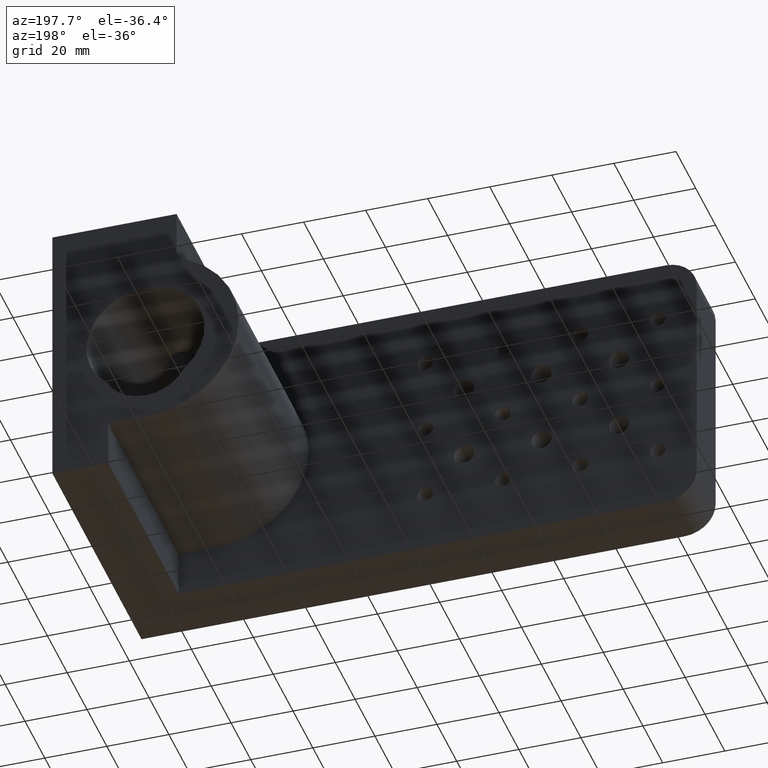
[diagram: clean part render]
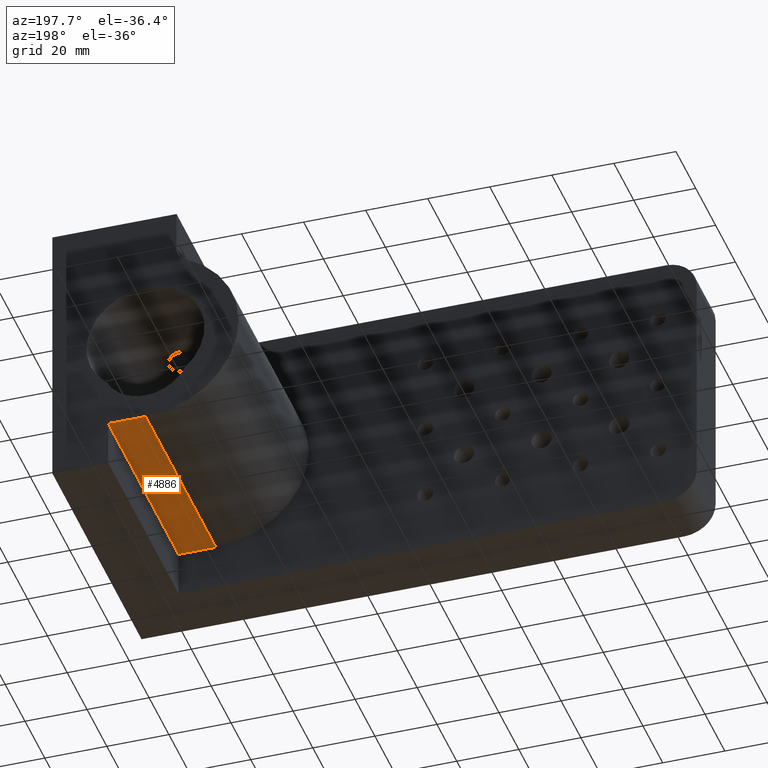
[diagram: same view with one face highlighted and labeled with its STEP entity id]
A machine part, auxiliary view. The second image highlights one B-rep face of the part: STEP entity #4886.
In plain terms, the highlighted planar face has unit normal (0, 0, 1).
Its self-contained STEP definition (entity closure, byte-faithful):
#108 = ORIENTED_EDGE ( 'NONE', *, *, #3926, .T. ) ;
#162 = CARTESIAN_POINT ( 'NONE',  ( 144.3969387244481500, 104.2146020396520600, 113.8158939252802600 ) ) ;
#237 = CARTESIAN_POINT ( 'NONE',  ( 156.3969387244482300, 175.2146020396520500, 113.8158939252802600 ) ) ;
#452 = LINE ( 'NONE', #237, #2522 ) ;
#521 = ORIENTED_EDGE ( 'NONE', *, *, #2670, .F. ) ;
#732 = DIRECTION ( 'NONE',  ( 1.000000000000000000, 0.0000000000000000000, -0.0000000000000000000 ) ) ;
#774 = CARTESIAN_POINT ( 'NONE',  ( 144.3969387244481500, 175.2146020396520500, 113.8158939252802600 ) ) ;
#834 = VERTEX_POINT ( 'NONE', #1533 ) ;
#932 = CARTESIAN_POINT ( 'NONE',  ( 156.3969387244482300, 175.2146020396520500, 113.8158939252802600 ) ) ;
#1070 = DIRECTION ( 'NONE',  ( -0.0000000000000000000, -1.000000000000000000, -0.0000000000000000000 ) ) ;
#1080 = CARTESIAN_POINT ( 'NONE',  ( 144.3969387244481500, 175.2146020396520500, 113.8158939252802600 ) ) ;
#1121 = VERTEX_POINT ( 'NONE', #162 ) ;
#1238 = EDGE_CURVE ( 'NONE', #834, #1121, #4701, .T. ) ;
#1400 = EDGE_LOOP ( 'NONE', ( #4998, #521, #3729, #108 ) ) ;
#1441 = VECTOR ( 'NONE', #1070, 1000.000000000000000 ) ;
#1530 = DIRECTION ( 'NONE',  ( -1.000000000000000000, -0.0000000000000000000, -0.0000000000000000000 ) ) ;
#1533 = CARTESIAN_POINT ( 'NONE',  ( 156.3969387244482300, 104.2146020396520600, 113.8158939252802600 ) ) ;
#1661 = FACE_OUTER_BOUND ( 'NONE', #1400, .T. ) ;
#1690 = DIRECTION ( 'NONE',  ( -1.000000000000000000, -0.0000000000000000000, -0.0000000000000000000 ) ) ;
#2472 = EDGE_CURVE ( 'NONE', #4934, #4715, #3198, .T. ) ;
#2522 = VECTOR ( 'NONE', #4078, 1000.000000000000000 ) ;
#2670 = EDGE_CURVE ( 'NONE', #4715, #1121, #4491, .T. ) ;
#2745 = AXIS2_PLACEMENT_3D ( 'NONE', #774, #3674, #732 ) ;
#2904 = CARTESIAN_POINT ( 'NONE',  ( 144.3969387244481500, 175.2146020396520500, 113.8158939252802600 ) ) ;
#3130 = VECTOR ( 'NONE', #1690, 1000.000000000000000 ) ;
#3198 = LINE ( 'NONE', #2904, #3130 ) ;
#3261 = PLANE ( 'NONE',  #2745 ) ;
#3298 = VECTOR ( 'NONE', #1530, 1000.000000000000000 ) ;
#3674 = DIRECTION ( 'NONE',  ( 0.0000000000000000000, 0.0000000000000000000, 1.000000000000000000 ) ) ;
#3729 = ORIENTED_EDGE ( 'NONE', *, *, #2472, .F. ) ;
#3926 = EDGE_CURVE ( 'NONE', #4934, #834, #452, .T. ) ;
#4078 = DIRECTION ( 'NONE',  ( -0.0000000000000000000, -1.000000000000000000, -0.0000000000000000000 ) ) ;
#4491 = LINE ( 'NONE', #4763, #1441 ) ;
#4701 = LINE ( 'NONE', #4747, #3298 ) ;
#4715 = VERTEX_POINT ( 'NONE', #1080 ) ;
#4747 = CARTESIAN_POINT ( 'NONE',  ( 144.3969387244481500, 104.2146020396520600, 113.8158939252802600 ) ) ;
#4763 = CARTESIAN_POINT ( 'NONE',  ( 144.3969387244481500, 175.2146020396520500, 113.8158939252802600 ) ) ;
#4886 = ADVANCED_FACE ( 'NONE', ( #1661 ), #3261, .F. ) ;
#4934 = VERTEX_POINT ( 'NONE', #932 ) ;
#4998 = ORIENTED_EDGE ( 'NONE', *, *, #1238, .T. ) ;